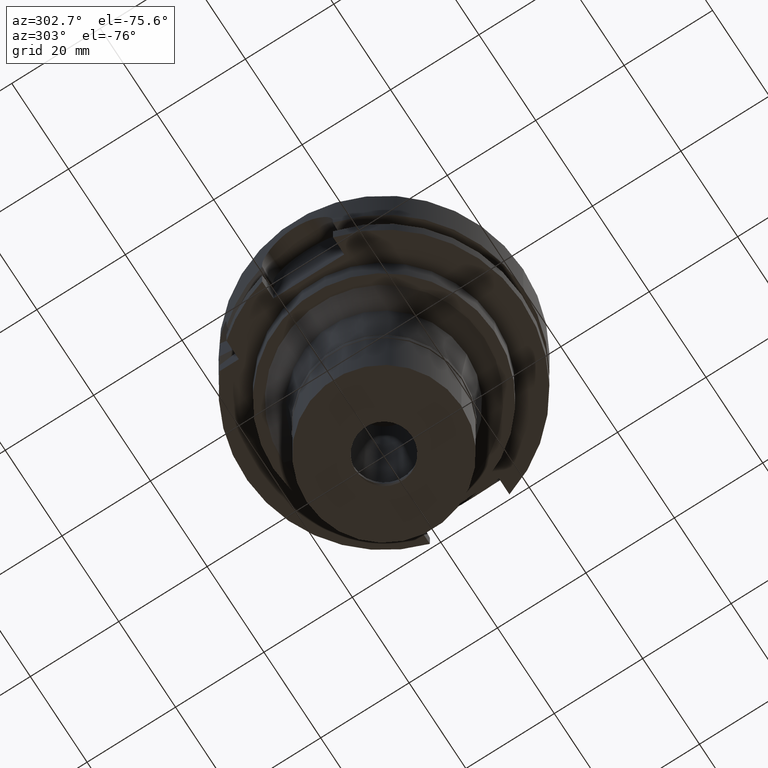
[diagram: clean part render]
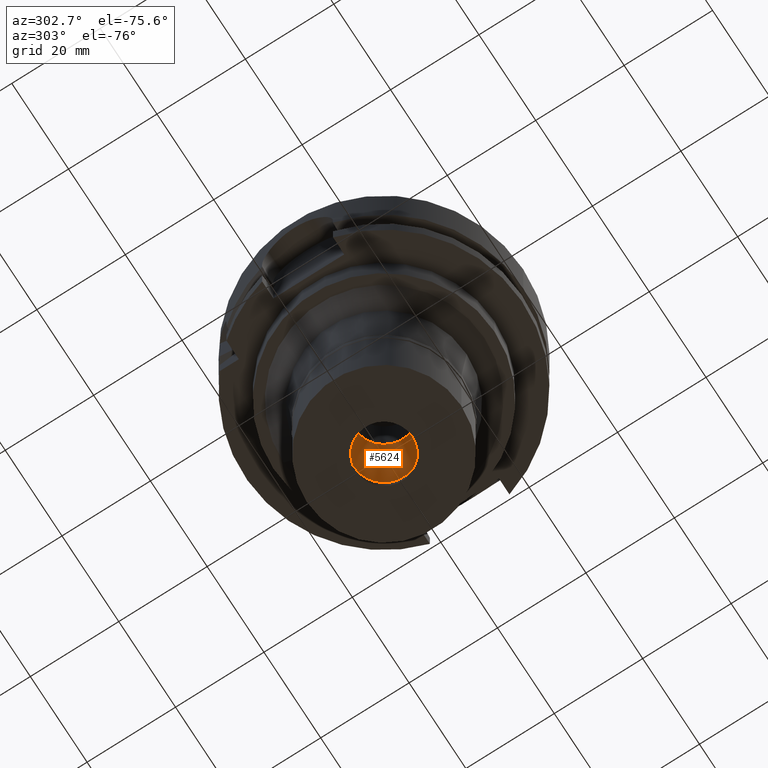
[diagram: same view with one face highlighted and labeled with its STEP entity id]
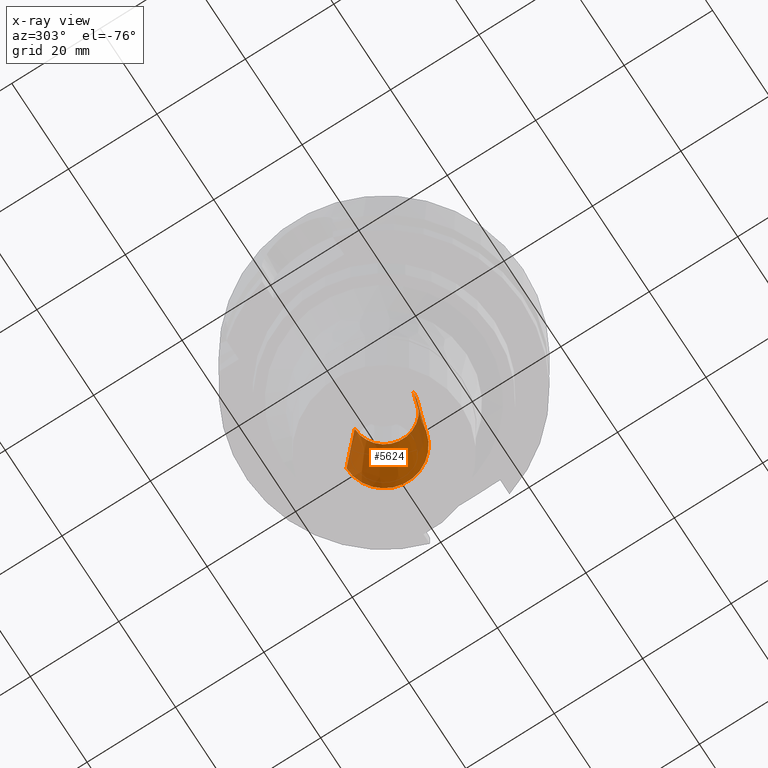
[diagram: x-ray of the same camera — body ghosted, the highlighted face saturated]
A machine part, auxiliary view. The second image highlights one B-rep face of the part: STEP entity #5624.
The next image is the same camera in x-ray: the body ghosted, the highlighted face saturated — about 11% of this face is hidden behind the body in this view.
In plain terms, the highlighted conical surface has half-angle 4 deg.
Its self-contained STEP definition (entity closure, byte-faithful):
#17 = DIRECTION ( 'NONE',  ( 0.0000000000000000000, 0.0000000000000000000, -1.000000000000000000 ) ) ;
#107 = DIRECTION ( 'NONE',  ( 0.0000000000000000000, 0.0000000000000000000, -1.000000000000000000 ) ) ;
#137 = ORIENTED_EDGE ( 'NONE', *, *, #5171, .F. ) ;
#194 = ORIENTED_EDGE ( 'NONE', *, *, #2808, .T. ) ;
#208 = CARTESIAN_POINT ( 'NONE',  ( 0.0000000000000000000, -6.649999999999999467, -41.84376742508000291 ) ) ;
#339 = DIRECTION ( 'NONE',  ( 0.0000000000000000000, 1.000000000000000000, 0.0000000000000000000 ) ) ;
#359 = LINE ( 'NONE', #3353, #531 ) ;
#531 = VECTOR ( 'NONE', #5088, 1000.000000000000000 ) ;
#537 = AXIS2_PLACEMENT_3D ( 'NONE', #5168, #17, #4378 ) ;
#688 = ORIENTED_EDGE ( 'NONE', *, *, #2978, .F. ) ;
#804 = CARTESIAN_POINT ( 'NONE',  ( 0.0000000000000000000, -8.500000000000000000, -68.29999999999999716 ) ) ;
#826 = CARTESIAN_POINT ( 'NONE',  ( 0.0000000000000000000, 0.0000000000000000000, -68.29999999999999716 ) ) ;
#933 = AXIS2_PLACEMENT_3D ( 'NONE', #1390, #107, #2243 ) ;
#1021 = VERTEX_POINT ( 'NONE', #208 ) ;
#1354 = LINE ( 'NONE', #3088, #4308 ) ;
#1390 = CARTESIAN_POINT ( 'NONE',  ( 0.0000000000000000000, 0.0000000000000000000, -41.84376742508000291 ) ) ;
#1523 = VERTEX_POINT ( 'NONE', #804 ) ;
#2011 = AXIS2_PLACEMENT_3D ( 'NONE', #826, #3040, #339 ) ;
#2243 = DIRECTION ( 'NONE',  ( 0.0000000000000000000, 1.000000000000000000, 0.0000000000000000000 ) ) ;
#2656 = VERTEX_POINT ( 'NONE', #5327 ) ;
#2808 = EDGE_CURVE ( 'NONE', #2896, #1523, #3647, .T. ) ;
#2896 = VERTEX_POINT ( 'NONE', #3872 ) ;
#2978 = EDGE_CURVE ( 'NONE', #2656, #1021, #3928, .T. ) ;
#3040 = DIRECTION ( 'NONE',  ( 0.0000000000000000000, 0.0000000000000000000, -1.000000000000000000 ) ) ;
#3088 = CARTESIAN_POINT ( 'NONE',  ( 0.0000000000000000000, -8.500000000000000000, -68.29999999999999716 ) ) ;
#3353 = CARTESIAN_POINT ( 'NONE',  ( 0.0000000000000000000, 8.500000000000000000, -68.29999999999999716 ) ) ;
#3512 = DIRECTION ( 'NONE',  ( 0.0000000000000000000, 0.06975647374412173585, 0.9975640502598245307 ) ) ;
#3647 = CIRCLE ( 'NONE', #2011, 8.500000000000000000 ) ;
#3740 = EDGE_CURVE ( 'NONE', #1523, #1021, #1354, .T. ) ;
#3872 = CARTESIAN_POINT ( 'NONE',  ( 0.0000000000000000000, 8.500000000000000000, -68.29999999999999716 ) ) ;
#3928 = CIRCLE ( 'NONE', #933, 6.649999999999999467 ) ;
#4308 = VECTOR ( 'NONE', #3512, 1000.000000000000000 ) ;
#4378 = DIRECTION ( 'NONE',  ( 0.0000000000000000000, -1.000000000000000000, 0.0000000000000000000 ) ) ;
#4398 = ORIENTED_EDGE ( 'NONE', *, *, #3740, .T. ) ;
#4711 = CONICAL_SURFACE ( 'NONE', #537, 7.575000000000000178, 0.06981317007975955391 ) ;
#4824 = EDGE_LOOP ( 'NONE', ( #194, #4398, #688, #137 ) ) ;
#5088 = DIRECTION ( 'NONE',  ( 0.0000000000000000000, -0.06975647374412173585, 0.9975640502598245307 ) ) ;
#5168 = CARTESIAN_POINT ( 'NONE',  ( 0.0000000000000000000, 0.0000000000000000000, -55.07188371253999293 ) ) ;
#5171 = EDGE_CURVE ( 'NONE', #2896, #2656, #359, .T. ) ;
#5327 = CARTESIAN_POINT ( 'NONE',  ( 0.0000000000000000000, 6.649999999999999467, -41.84376742508000291 ) ) ;
#5624 = ADVANCED_FACE ( 'NONE', ( #5630 ), #4711, .F. ) ;
#5630 = FACE_OUTER_BOUND ( 'NONE', #4824, .T. ) ;